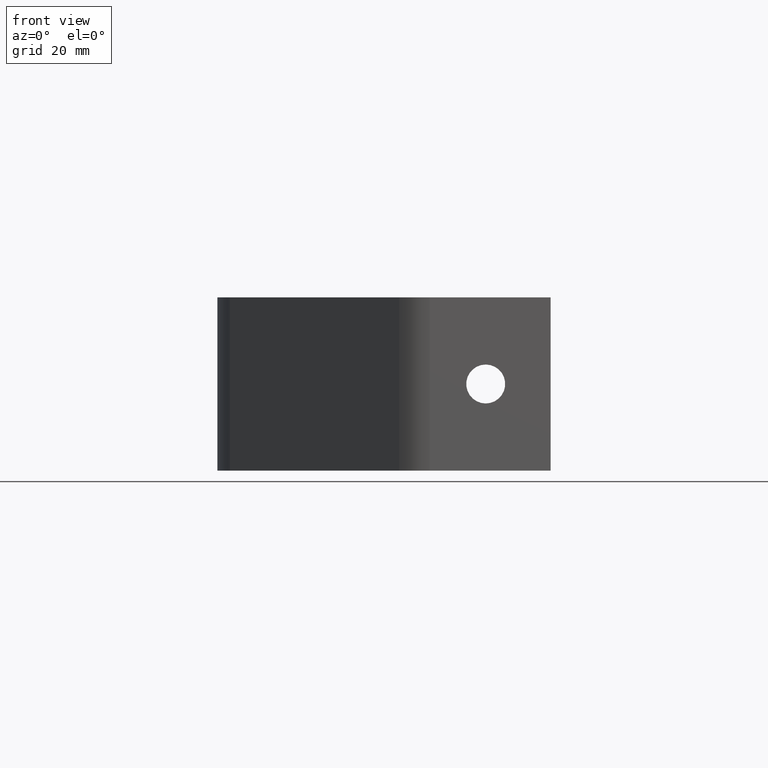
[diagram: clean part render]
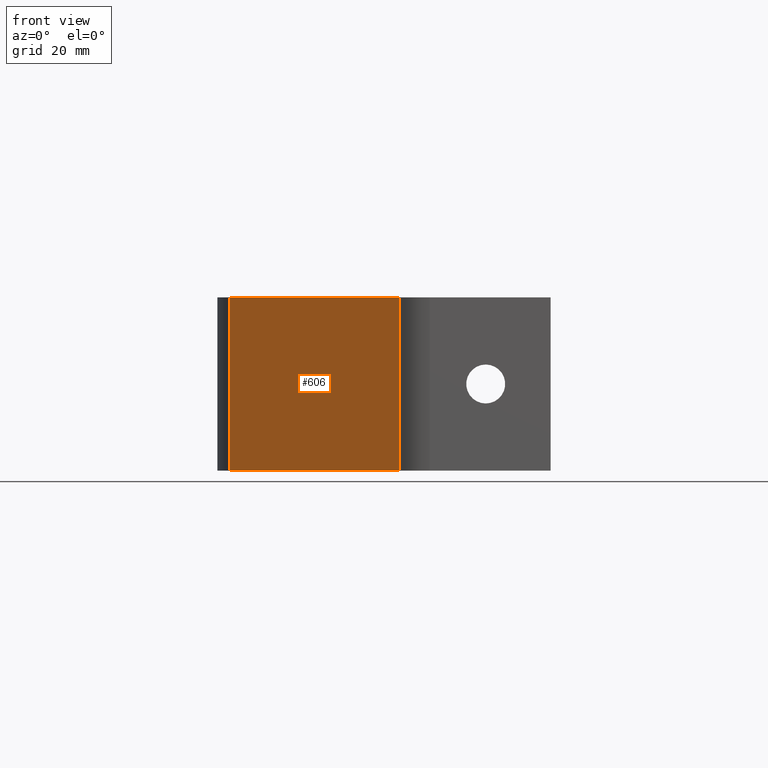
[diagram: same view with one face highlighted and labeled with its STEP entity id]
A machine part, front view. The second image highlights one B-rep face of the part: STEP entity #606.
In plain terms, the highlighted planar face has unit normal (0.7071, 0.7071, -0).
Its self-contained STEP definition (entity closure, byte-faithful):
#7 = VERTEX_POINT ( 'NONE', #545 ) ;
#8 = VERTEX_POINT ( 'NONE', #546 ) ;
#33 = CARTESIAN_POINT ( 'NONE',  ( -35.00000000140599400, 2.928932189675031300, 20.00000000000000000 ) ) ;
#34 = DIRECTION ( 'NONE',  ( -0.0000000000000000000, -0.0000000000000000000, 1.000000000000000000 ) ) ;
#35 = CARTESIAN_POINT ( 'NONE',  ( -35.00000000000000000, 2.928932188000000100, 40.00000000000000000 ) ) ;
#36 = DIRECTION ( 'NONE',  ( -0.7071067811865473500, 0.7071067811865477900, 0.0000000000000000000 ) ) ;
#39 = CARTESIAN_POINT ( 'NONE',  ( -35.00000003499999200, 2.928932140000000100, 0.0000000000000000000 ) ) ;
#40 = DIRECTION ( 'NONE',  ( -0.7071067812317926000, 0.7071067811413024300, 0.0000000000000000000 ) ) ;
#72 = EDGE_CURVE ( 'NONE', #541, #534, #405, .T. ) ;
#95 = AXIS2_PLACEMENT_3D ( 'NONE', #628, #629, #630 ) ;
#131 = EDGE_CURVE ( 'NONE', #8, #7, #375, .T. ) ;
#132 = EDGE_CURVE ( 'NONE', #7, #541, #372, .T. ) ;
#134 = EDGE_CURVE ( 'NONE', #8, #534, #368, .T. ) ;
#187 = CARTESIAN_POINT ( 'NONE',  ( -74.07106783447677900, 41.99999997861128500, 2.961358217058114000E-015 ) ) ;
#194 = CARTESIAN_POINT ( 'NONE',  ( -74.07106781270299200, 42.00000000083753100, 40.00000000000000700 ) ) ;
#265 = FACE_OUTER_BOUND ( 'NONE', #442, .T. ) ;
#367 = VECTOR ( 'NONE', #40, 1000.000000000000000 ) ;
#368 = LINE ( 'NONE', #39, #367 ) ;
#371 = VECTOR ( 'NONE', #36, 1000.000000000000000 ) ;
#372 = LINE ( 'NONE', #35, #371 ) ;
#373 = VECTOR ( 'NONE', #34, 1000.000000000000000 ) ;
#375 = LINE ( 'NONE', #33, #373 ) ;
#403 = VECTOR ( 'NONE', #589, 1000.000000000000000 ) ;
#405 = LINE ( 'NONE', #588, #403 ) ;
#442 = EDGE_LOOP ( 'NONE', ( #450, #453, #452, #459 ) ) ;
#450 = ORIENTED_EDGE ( 'NONE', *, *, #131, .T. ) ;
#452 = ORIENTED_EDGE ( 'NONE', *, *, #72, .T. ) ;
#453 = ORIENTED_EDGE ( 'NONE', *, *, #132, .T. ) ;
#459 = ORIENTED_EDGE ( 'NONE', *, *, #134, .F. ) ;
#534 = VERTEX_POINT ( 'NONE', #187 ) ;
#541 = VERTEX_POINT ( 'NONE', #194 ) ;
#545 = CARTESIAN_POINT ( 'NONE',  ( -35.00000000070299700, 2.928932188837515900, 40.00000000000000700 ) ) ;
#546 = CARTESIAN_POINT ( 'NONE',  ( -35.00000002122676800, 2.928932167861288100, -3.977535687282798100E-015 ) ) ;
#588 = CARTESIAN_POINT ( 'NONE',  ( -74.07106781340600300, 42.00000000167504800, 20.00000000000000000 ) ) ;
#589 = DIRECTION ( 'NONE',  ( 0.0000000000000000000, 0.0000000000000000000, -1.000000000000000000 ) ) ;
#606 = ADVANCED_FACE ( 'NONE', ( #265 ), #627, .F. ) ;
#627 = PLANE ( 'NONE',  #95 ) ;
#628 = CARTESIAN_POINT ( 'NONE',  ( -35.00000000000000000, 2.928932188000000100, 0.0000000000000000000 ) ) ;
#629 = DIRECTION ( 'NONE',  ( 0.7071067811865477900, 0.7071067811865472400, -0.0000000000000000000 ) ) ;
#630 = DIRECTION ( 'NONE',  ( -0.7071067811865472400, 0.7071067811865477900, 0.0000000000000000000 ) ) ;